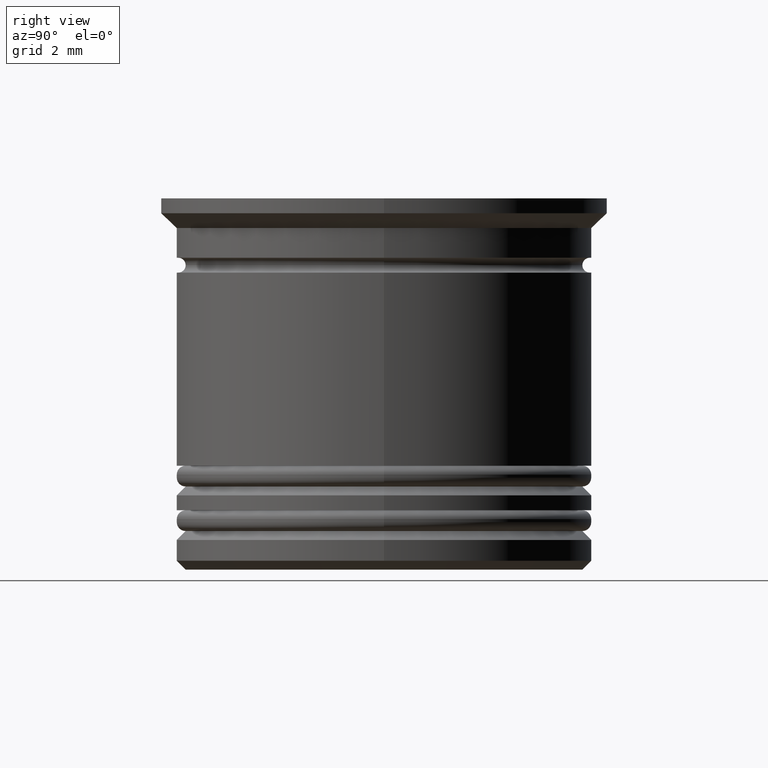
[diagram: clean part render]
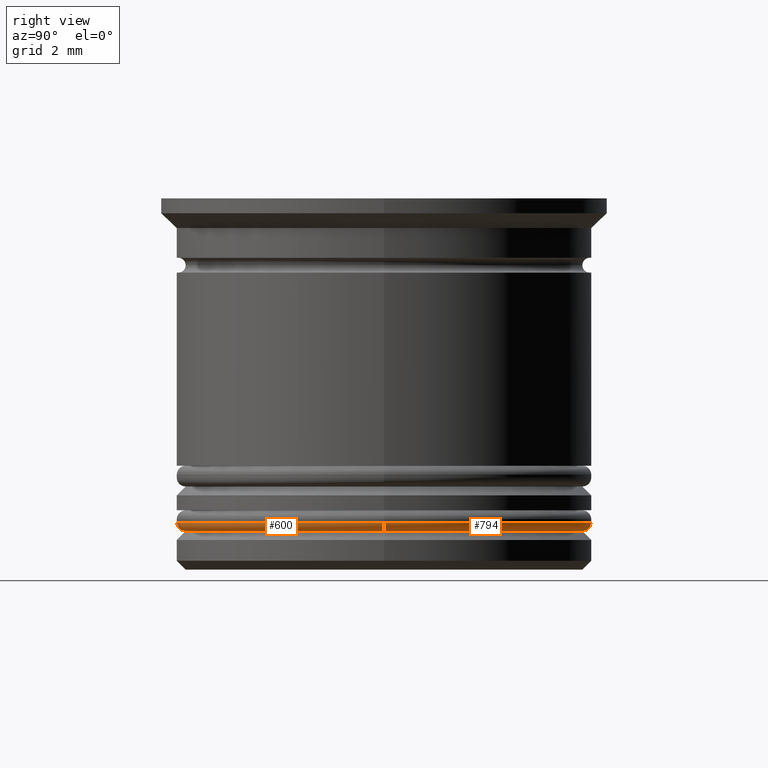
[diagram: same view with one multi-face feature highlighted, each face labeled with its STEP entity id]
A machine part, right view. The highlighted faces form ONE feature: a constant-radius fillet chain: 2 tangent blend faces with common blend radius 0.3 mm. The faces share edges in the B-rep.
Their STEP definitions:
[1] entity #794 (Torus):
#10 = VERTEX_POINT ( 'NONE', #191 ) ;
#15 = DIRECTION ( 'NONE',  ( -0.000000000000000000, -0.000000000000000000, -1.000000000000000000 ) ) ;
#191 = CARTESIAN_POINT ( 'NONE',  ( -7.000000000000002665, 8.572527594031475162E-16, -10.90000000000000391 ) ) ;
#203 = ORIENTED_EDGE ( 'NONE', *, *, #1637, .F. ) ;
#220 = CIRCLE ( 'NONE', #607, 7.000000000000002665 ) ;
#258 = EDGE_CURVE ( 'NONE', #653, #10, #1120, .T. ) ;
#265 = CARTESIAN_POINT ( 'NONE',  ( -6.700000000000002842, 8.205133554287269520E-16, -10.90000000000000391 ) ) ;
#443 = CARTESIAN_POINT ( 'NONE',  ( 6.700000000000002842, 0.000000000000000000, -10.90000000000000391 ) ) ;
#471 = VERTEX_POINT ( 'NONE', #1304 ) ;
#604 = EDGE_CURVE ( 'NONE', #471, #10, #220, .T. ) ;
#607 = AXIS2_PLACEMENT_3D ( 'NONE', #1535, #1236, #1855 ) ;
#653 = VERTEX_POINT ( 'NONE', #1052 ) ;
#794 = ADVANCED_FACE ( 'NONE', ( #1019 ), #1653, .T. ) ;
#799 = DIRECTION ( 'NONE',  ( 1.000000000000000000, 0.000000000000000000, 0.000000000000000000 ) ) ;
#832 = ORIENTED_EDGE ( 'NONE', *, *, #1039, .F. ) ;
#985 = EDGE_LOOP ( 'NONE', ( #203, #1123, #1092, #832 ) ) ;
#1003 = AXIS2_PLACEMENT_3D ( 'NONE', #1385, #15, #799 ) ;
#1019 = FACE_OUTER_BOUND ( 'NONE', #985, .T. ) ;
#1027 = AXIS2_PLACEMENT_3D ( 'NONE', #265, #1636, #1932 ) ;
#1039 = EDGE_CURVE ( 'NONE', #1630, #471, #1589, .T. ) ;
#1052 = CARTESIAN_POINT ( 'NONE',  ( -6.700000000000002842, 8.388830574159372834E-16, -11.20000000000000462 ) ) ;
#1090 = CARTESIAN_POINT ( 'NONE',  ( 6.700000000000002842, 0.000000000000000000, -11.20000000000000462 ) ) ;
#1092 = ORIENTED_EDGE ( 'NONE', *, *, #604, .F. ) ;
#1120 = CIRCLE ( 'NONE', #1027, 0.2999999999999999334 ) ;
#1123 = ORIENTED_EDGE ( 'NONE', *, *, #258, .T. ) ;
#1228 = CIRCLE ( 'NONE', #1003, 6.700000000000002842 ) ;
#1236 = DIRECTION ( 'NONE',  ( 0.000000000000000000, 0.000000000000000000, 1.000000000000000000 ) ) ;
#1304 = CARTESIAN_POINT ( 'NONE',  ( 7.000000000000002665, 0.000000000000000000, -10.90000000000000391 ) ) ;
#1357 = AXIS2_PLACEMENT_3D ( 'NONE', #443, #1962, #1673 ) ;
#1385 = CARTESIAN_POINT ( 'NONE',  ( 0.000000000000000000, 0.000000000000000000, -11.20000000000000462 ) ) ;
#1453 = AXIS2_PLACEMENT_3D ( 'NONE', #1931, #1481, #1762 ) ;
#1481 = DIRECTION ( 'NONE',  ( 0.000000000000000000, 0.000000000000000000, 1.000000000000000000 ) ) ;
#1535 = CARTESIAN_POINT ( 'NONE',  ( 0.000000000000000000, 0.000000000000000000, -10.90000000000000391 ) ) ;
#1589 = CIRCLE ( 'NONE', #1357, 0.2999999999999999334 ) ;
#1630 = VERTEX_POINT ( 'NONE', #1090 ) ;
#1636 = DIRECTION ( 'NONE',  ( 1.224646799147353207E-16, 1.000000000000000000, -0.000000000000000000 ) ) ;
#1637 = EDGE_CURVE ( 'NONE', #653, #1630, #1228, .T. ) ;
#1653 = TOROIDAL_SURFACE ( 'NONE', #1453, 6.700000000000002842, 0.2999999999999999889 ) ;
#1673 = DIRECTION ( 'NONE',  ( 0.000000000000000000, 0.000000000000000000, -1.000000000000000000 ) ) ;
#1762 = DIRECTION ( 'NONE',  ( 1.000000000000000000, 0.000000000000000000, 0.000000000000000000 ) ) ;
#1855 = DIRECTION ( 'NONE',  ( 1.000000000000000000, 0.000000000000000000, 0.000000000000000000 ) ) ;
#1931 = CARTESIAN_POINT ( 'NONE',  ( 0.000000000000000000, 0.000000000000000000, -10.90000000000000391 ) ) ;
#1932 = DIRECTION ( 'NONE',  ( -1.000000000000000000, 1.224646799147353207E-16, 0.000000000000000000 ) ) ;
#1962 = DIRECTION ( 'NONE',  ( 0.000000000000000000, -1.000000000000000000, 0.000000000000000000 ) ) ;
[2] entity #600 (Torus):
#10 = VERTEX_POINT ( 'NONE', #191 ) ;
#116 = ORIENTED_EDGE ( 'NONE', *, *, #1039, .T. ) ;
#191 = CARTESIAN_POINT ( 'NONE',  ( -7.000000000000002665, 8.572527594031475162E-16, -10.90000000000000391 ) ) ;
#258 = EDGE_CURVE ( 'NONE', #653, #10, #1120, .T. ) ;
#265 = CARTESIAN_POINT ( 'NONE',  ( -6.700000000000002842, 8.205133554287269520E-16, -10.90000000000000391 ) ) ;
#384 = AXIS2_PLACEMENT_3D ( 'NONE', #1546, #588, #1514 ) ;
#443 = CARTESIAN_POINT ( 'NONE',  ( 6.700000000000002842, 0.000000000000000000, -10.90000000000000391 ) ) ;
#471 = VERTEX_POINT ( 'NONE', #1304 ) ;
#540 = EDGE_CURVE ( 'NONE', #1630, #653, #1934, .T. ) ;
#554 = CIRCLE ( 'NONE', #1847, 7.000000000000002665 ) ;
#578 = CARTESIAN_POINT ( 'NONE',  ( 0.000000000000000000, 0.000000000000000000, -10.90000000000000391 ) ) ;
#588 = DIRECTION ( 'NONE',  ( -0.000000000000000000, -0.000000000000000000, -1.000000000000000000 ) ) ;
#600 = ADVANCED_FACE ( 'NONE', ( #1348 ), #1093, .T. ) ;
#653 = VERTEX_POINT ( 'NONE', #1052 ) ;
#690 = CARTESIAN_POINT ( 'NONE',  ( 0.000000000000000000, 0.000000000000000000, -10.90000000000000391 ) ) ;
#829 = DIRECTION ( 'NONE',  ( 1.000000000000000000, 0.000000000000000000, 0.000000000000000000 ) ) ;
#1027 = AXIS2_PLACEMENT_3D ( 'NONE', #265, #1636, #1932 ) ;
#1039 = EDGE_CURVE ( 'NONE', #1630, #471, #1589, .T. ) ;
#1044 = DIRECTION ( 'NONE',  ( 1.000000000000000000, 0.000000000000000000, 0.000000000000000000 ) ) ;
#1052 = CARTESIAN_POINT ( 'NONE',  ( -6.700000000000002842, 8.388830574159372834E-16, -11.20000000000000462 ) ) ;
#1090 = CARTESIAN_POINT ( 'NONE',  ( 6.700000000000002842, 0.000000000000000000, -11.20000000000000462 ) ) ;
#1093 = TOROIDAL_SURFACE ( 'NONE', #1487, 6.700000000000002842, 0.2999999999999999889 ) ;
#1120 = CIRCLE ( 'NONE', #1027, 0.2999999999999999334 ) ;
#1248 = EDGE_LOOP ( 'NONE', ( #1515, #1794, #116, #1707 ) ) ;
#1304 = CARTESIAN_POINT ( 'NONE',  ( 7.000000000000002665, 0.000000000000000000, -10.90000000000000391 ) ) ;
#1348 = FACE_OUTER_BOUND ( 'NONE', #1248, .T. ) ;
#1357 = AXIS2_PLACEMENT_3D ( 'NONE', #443, #1962, #1673 ) ;
#1369 = DIRECTION ( 'NONE',  ( 0.000000000000000000, 0.000000000000000000, 1.000000000000000000 ) ) ;
#1487 = AXIS2_PLACEMENT_3D ( 'NONE', #578, #1369, #1044 ) ;
#1514 = DIRECTION ( 'NONE',  ( 1.000000000000000000, 0.000000000000000000, 0.000000000000000000 ) ) ;
#1515 = ORIENTED_EDGE ( 'NONE', *, *, #258, .F. ) ;
#1546 = CARTESIAN_POINT ( 'NONE',  ( 0.000000000000000000, 0.000000000000000000, -11.20000000000000462 ) ) ;
#1589 = CIRCLE ( 'NONE', #1357, 0.2999999999999999334 ) ;
#1594 = DIRECTION ( 'NONE',  ( 0.000000000000000000, 0.000000000000000000, 1.000000000000000000 ) ) ;
#1630 = VERTEX_POINT ( 'NONE', #1090 ) ;
#1636 = DIRECTION ( 'NONE',  ( 1.224646799147353207E-16, 1.000000000000000000, -0.000000000000000000 ) ) ;
#1673 = DIRECTION ( 'NONE',  ( 0.000000000000000000, 0.000000000000000000, -1.000000000000000000 ) ) ;
#1707 = ORIENTED_EDGE ( 'NONE', *, *, #1818, .F. ) ;
#1794 = ORIENTED_EDGE ( 'NONE', *, *, #540, .F. ) ;
#1818 = EDGE_CURVE ( 'NONE', #10, #471, #554, .T. ) ;
#1847 = AXIS2_PLACEMENT_3D ( 'NONE', #690, #1594, #829 ) ;
#1932 = DIRECTION ( 'NONE',  ( -1.000000000000000000, 1.224646799147353207E-16, 0.000000000000000000 ) ) ;
#1934 = CIRCLE ( 'NONE', #384, 6.700000000000002842 ) ;
#1962 = DIRECTION ( 'NONE',  ( 0.000000000000000000, -1.000000000000000000, 0.000000000000000000 ) ) ;